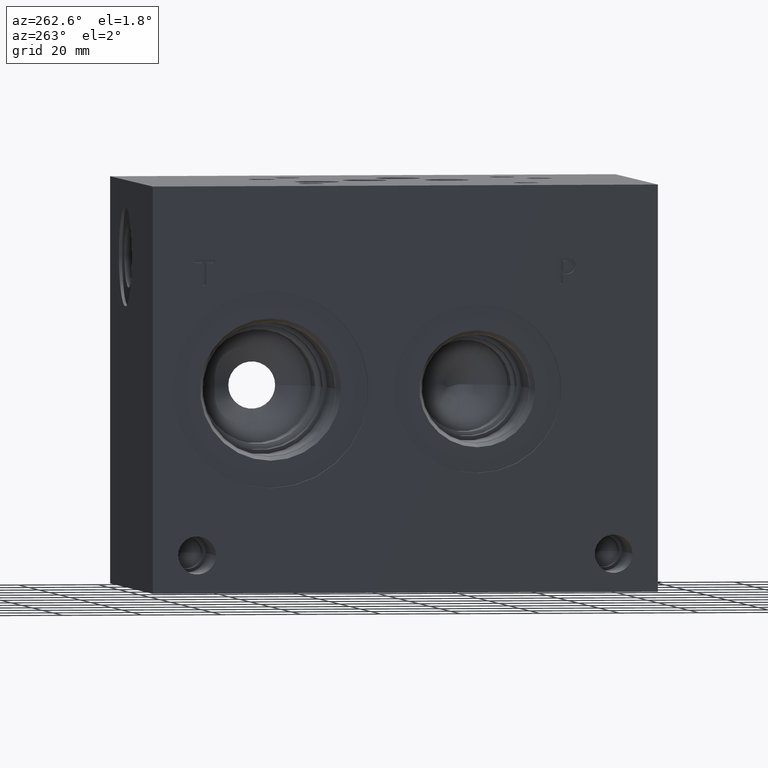
[diagram: clean part render]
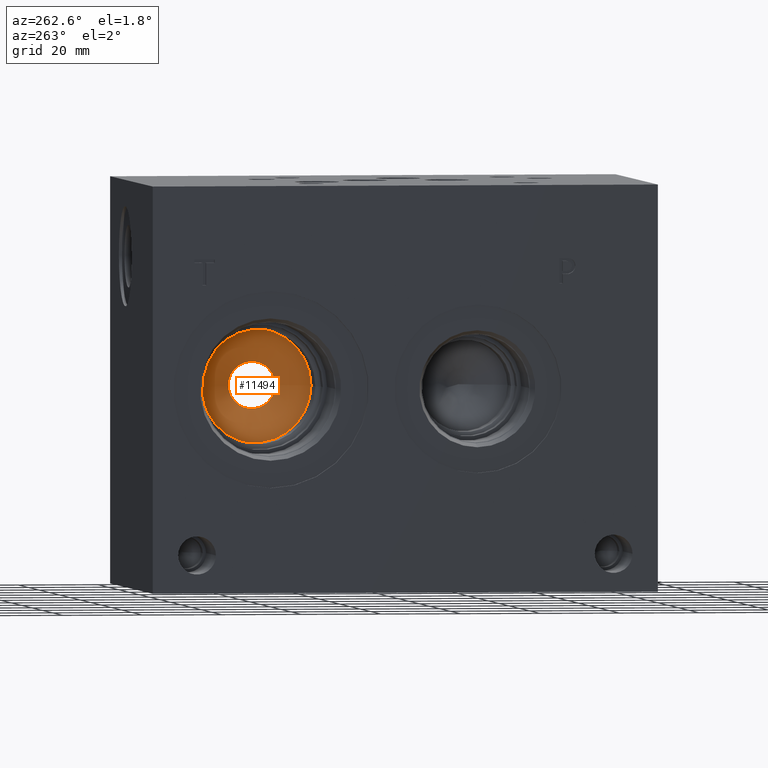
[diagram: same view with one face highlighted and labeled with its STEP entity id]
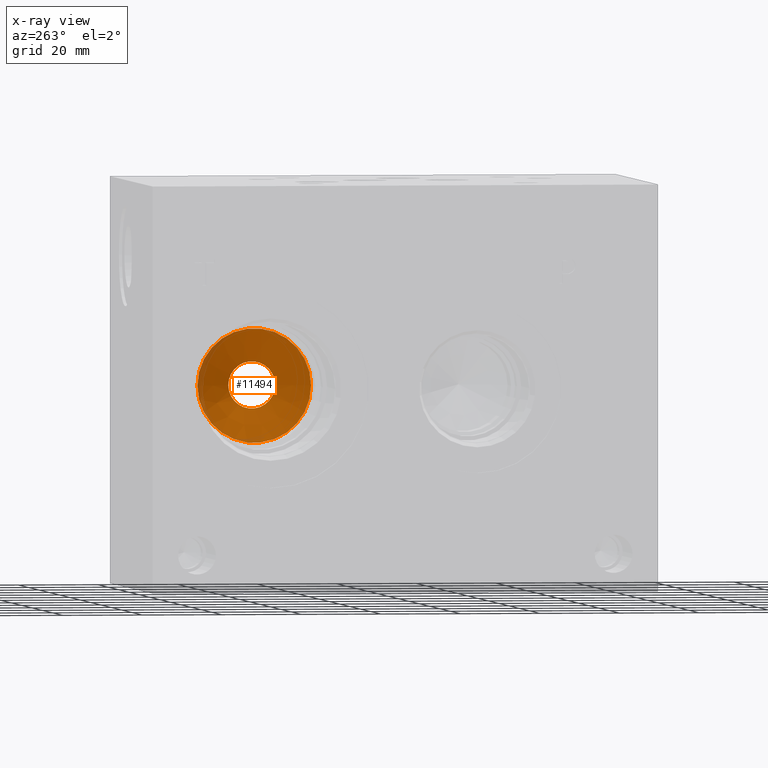
[diagram: x-ray of the same camera — body ghosted, the highlighted face saturated]
A machine part, auxiliary view. The second image highlights one B-rep face of the part: STEP entity #11494.
The next image is the same camera in x-ray: the body ghosted, the highlighted face saturated — about 5% of this face is hidden behind the body in this view.
In plain terms, the highlighted conical surface has half-angle 60 deg.
Its self-contained STEP definition (entity closure, byte-faithful):
#109=CONICAL_SURFACE('',#12131,7.14375,1.0471975511966);
#261=CIRCLE('',#12077,5.89477534966809);
#293=CIRCLE('',#12132,14.2875);
#294=CIRCLE('',#12133,14.2875);
#1407=FACE_OUTER_BOUND('',#2068,.T.);
#2068=EDGE_LOOP('',(#9891,#9892,#9893,#9894,#9895));
#3179=LINE('',#19562,#4259);
#4259=VECTOR('',#14445,7.14375);
#5277=VERTEX_POINT('',#19451);
#5312=VERTEX_POINT('',#19559);
#5313=VERTEX_POINT('',#19560);
#6822=EDGE_CURVE('',#5277,#5277,#261,.T.);
#6871=EDGE_CURVE('',#5312,#5313,#293,.T.);
#6872=EDGE_CURVE('',#5313,#5277,#3179,.T.);
#6873=EDGE_CURVE('',#5313,#5312,#294,.T.);
#9891=ORIENTED_EDGE('',*,*,#6871,.T.);
#9892=ORIENTED_EDGE('',*,*,#6872,.T.);
#9893=ORIENTED_EDGE('',*,*,#6822,.T.);
#9894=ORIENTED_EDGE('',*,*,#6872,.F.);
#9895=ORIENTED_EDGE('',*,*,#6873,.T.);
#11494=ADVANCED_FACE('',(#1407),#109,.F.);
#12077=AXIS2_PLACEMENT_3D('',#19453,#14316,#14317);
#12131=AXIS2_PLACEMENT_3D('',#19558,#14441,#14442);
#12132=AXIS2_PLACEMENT_3D('',#19561,#14443,#14444);
#12133=AXIS2_PLACEMENT_3D('',#19563,#14446,#14447);
#14316=DIRECTION('center_axis',(1.,0.,0.));
#14317=DIRECTION('ref_axis',(0.,1.,0.));
#14441=DIRECTION('center_axis',(-1.,0.,0.));
#14442=DIRECTION('ref_axis',(0.,1.,0.));
#14443=DIRECTION('center_axis',(-1.,0.,0.));
#14444=DIRECTION('ref_axis',(0.,1.,0.));
#14445=DIRECTION('',(0.5,0.866025403784439,-1.06057523872491E-16));
#14446=DIRECTION('center_axis',(-1.,0.,0.));
#14447=DIRECTION('ref_axis',(0.,1.,0.));
#19451=CARTESIAN_POINT('',(37.4936018361035,91.3618246503319,50.8));
#19453=CARTESIAN_POINT('Origin',(37.4936018361035,97.2566,50.8));
#19558=CARTESIAN_POINT('Origin',(36.7725059855234,97.2566,50.8));
#19559=CARTESIAN_POINT('',(32.64806,111.5441,50.8));
#19560=CARTESIAN_POINT('',(32.64806,82.9691,50.8));
#19561=CARTESIAN_POINT('Origin',(32.64806,97.2566,50.8));
#19562=CARTESIAN_POINT('',(36.7725059855234,90.11285,50.8));
#19563=CARTESIAN_POINT('Origin',(32.64806,97.2566,50.8));